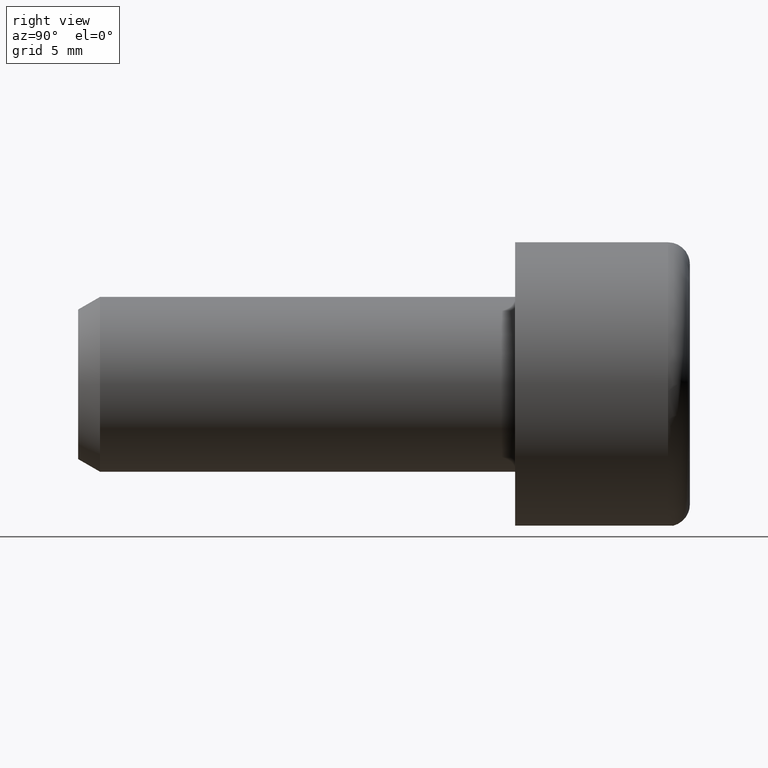
[diagram: clean part render]
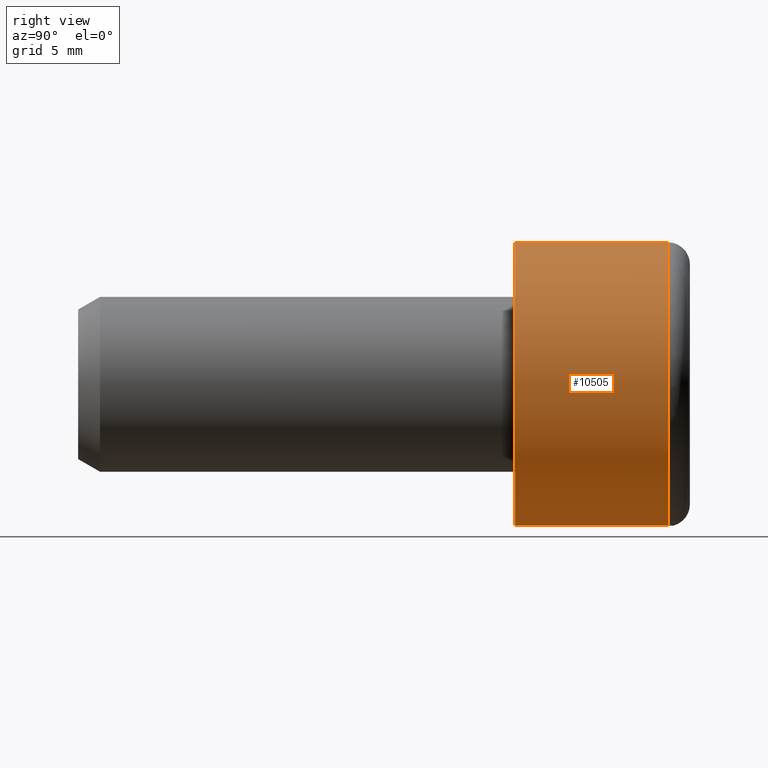
[diagram: same view with one face highlighted and labeled with its STEP entity id]
A machine part, right view. The second image highlights one B-rep face of the part: STEP entity #10505.
In plain terms, the highlighted cylindrical surface (bore or boss wall) has radius 6.5 mm, axis along (-0, -1, -0).
Its self-contained STEP definition (entity closure, byte-faithful):
#971 = EDGE_LOOP ( 'NONE', ( #13383 ) ) ;
#1378 = FACE_OUTER_BOUND ( 'NONE', #971, .T. ) ;
#1683 = VERTEX_POINT ( 'NONE', #15591 ) ;
#4191 = CARTESIAN_POINT ( 'NONE',  ( 0.0000000000000000000, 7.000000000000000000, 0.0000000000000000000 ) ) ;
#5318 = CARTESIAN_POINT ( 'NONE',  ( 0.0000000000000000000, 8.000000000000000000, 0.0000000000000000000 ) ) ;
#5370 = DIRECTION ( 'NONE',  ( -0.0000000000000000000, -1.000000000000000000, -0.0000000000000000000 ) ) ;
#5999 = CARTESIAN_POINT ( 'NONE',  ( 0.0000000000000000000, 0.0000000000000000000, 0.0000000000000000000 ) ) ;
#6288 = DIRECTION ( 'NONE',  ( 0.0000000000000000000, 0.0000000000000000000, 1.000000000000000000 ) ) ;
#8951 = FACE_OUTER_BOUND ( 'NONE', #14301, .T. ) ;
#9074 = EDGE_CURVE ( 'NONE', #12912, #12912, #15918, .T. ) ;
#9302 = DIRECTION ( 'NONE',  ( 0.0000000000000000000, 0.0000000000000000000, -1.000000000000000000 ) ) ;
#9360 = AXIS2_PLACEMENT_3D ( 'NONE', #5318, #5370, #9302 ) ;
#9382 = CARTESIAN_POINT ( 'NONE',  ( 0.0000000000000000000, 0.0000000000000000000, 6.500000000000000900 ) ) ;
#9662 = DIRECTION ( 'NONE',  ( 0.0000000000000000000, 1.000000000000000000, 0.0000000000000000000 ) ) ;
#9680 = EDGE_CURVE ( 'NONE', #1683, #1683, #12646, .T. ) ;
#10500 = AXIS2_PLACEMENT_3D ( 'NONE', #5999, #9662, #6288 ) ;
#10505 = ADVANCED_FACE ( 'NONE', ( #8951, #1378 ), #11270, .T. ) ;
#10787 = AXIS2_PLACEMENT_3D ( 'NONE', #4191, #11604, #15436 ) ;
#11270 = CYLINDRICAL_SURFACE ( 'NONE', #9360, 6.500000000000000900 ) ;
#11604 = DIRECTION ( 'NONE',  ( -0.0000000000000000000, -1.000000000000000000, -0.0000000000000000000 ) ) ;
#12646 = CIRCLE ( 'NONE', #10787, 6.500000000000000900 ) ;
#12912 = VERTEX_POINT ( 'NONE', #9382 ) ;
#13383 = ORIENTED_EDGE ( 'NONE', *, *, #9074, .T. ) ;
#14301 = EDGE_LOOP ( 'NONE', ( #14404 ) ) ;
#14404 = ORIENTED_EDGE ( 'NONE', *, *, #9680, .T. ) ;
#15436 = DIRECTION ( 'NONE',  ( 0.0000000000000000000, 0.0000000000000000000, 1.000000000000000000 ) ) ;
#15591 = CARTESIAN_POINT ( 'NONE',  ( 0.0000000000000000000, 7.000000000000000000, 6.500000000000000900 ) ) ;
#15918 = CIRCLE ( 'NONE', #10500, 6.500000000000000900 ) ;